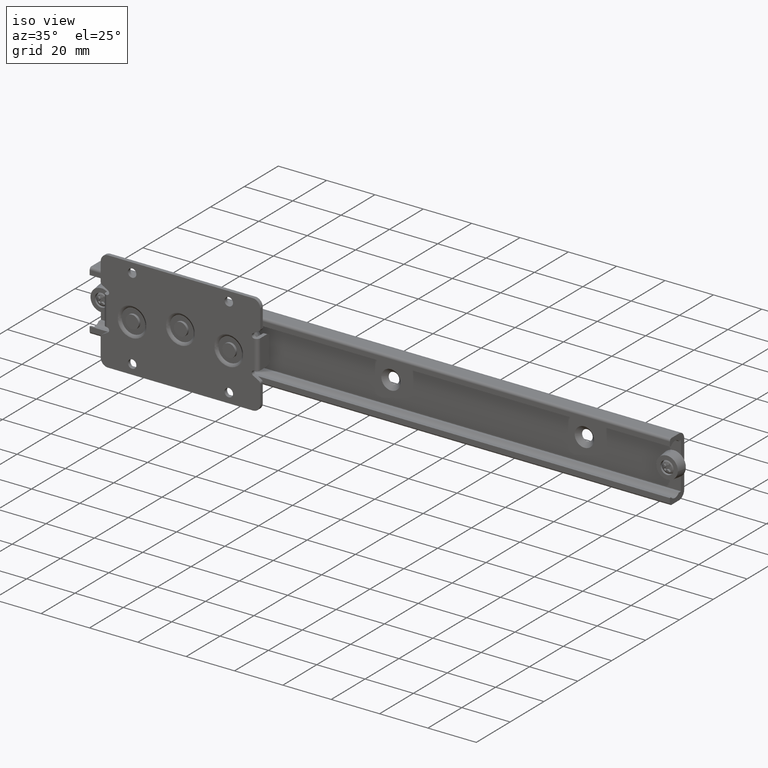
[diagram: clean part render]
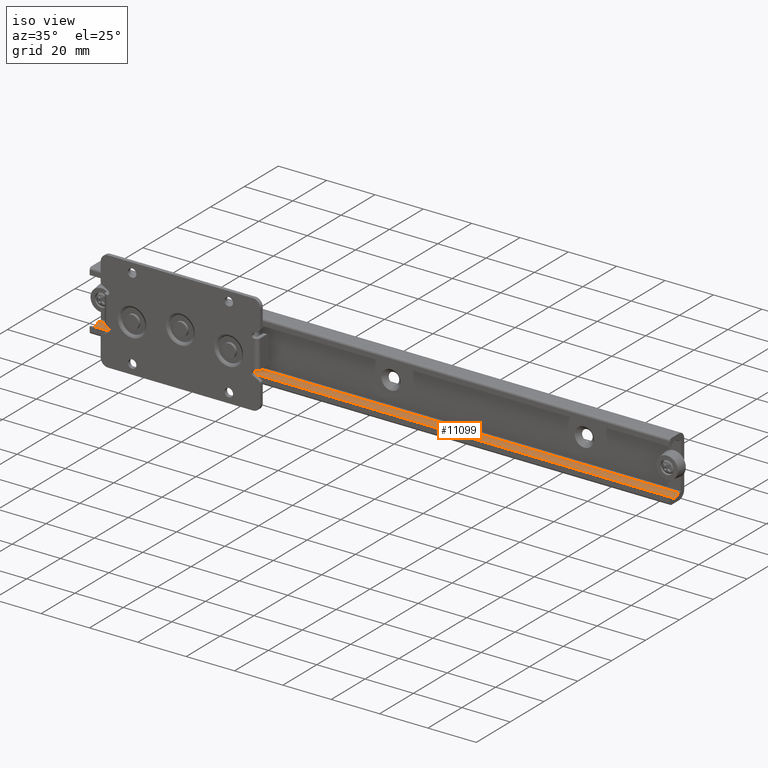
[diagram: same view with one face highlighted and labeled with its STEP entity id]
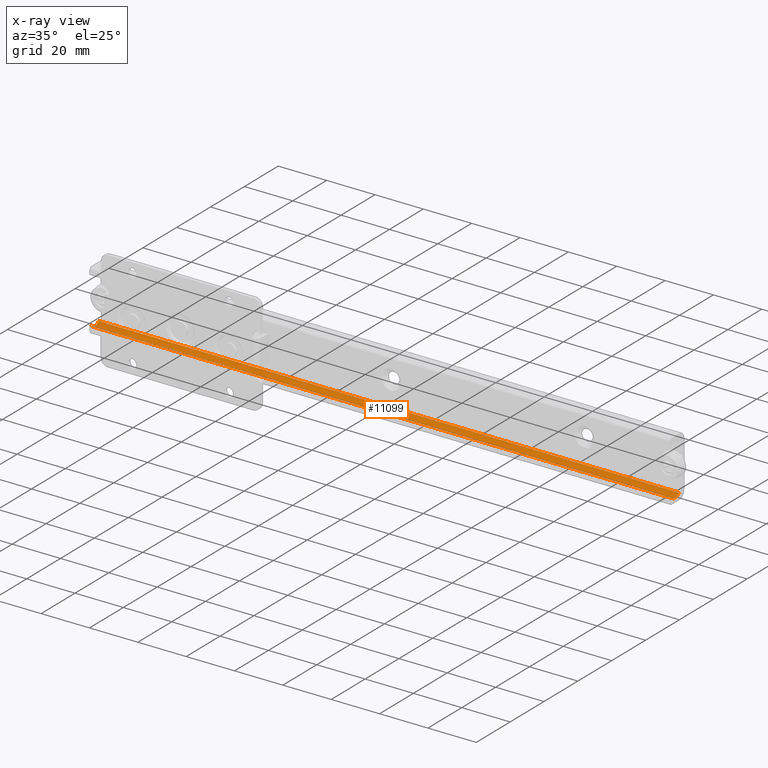
[diagram: x-ray of the same camera — body ghosted, the highlighted face saturated]
A machine part, iso view. The second image highlights one B-rep face of the part: STEP entity #11099.
The next image is the same camera in x-ray: the body ghosted, the highlighted face saturated — about 0% of this face is hidden behind the body in this view.
In plain terms, the highlighted face is a freeform B-spline surface patch.
Its self-contained STEP definition (entity closure, byte-faithful):
#11041=CARTESIAN_POINT('',(246.0,-7.820102745023522,-9.539862998089063));
#11042=CARTESIAN_POINT('',(-6.150000000000006,-7.820102745023522,-9.539862998089063));
#11043=CARTESIAN_POINT('',(246.000000000000030,-5.425386770192872,-12.733210469974980));
#11044=CARTESIAN_POINT('',(-6.150000000000005,-5.425386770192872,-12.733210469974980));
#11045=CARTESIAN_POINT('',(246.0,-3.128340781184956,-9.468901599679164));
#11046=CARTESIAN_POINT('',(-6.150000000000006,-3.128340781184956,-9.468901599679164));
#11054=(BOUNDED_SURFACE()B_SPLINE_SURFACE(1,2,((#11041,#11043,#11045),(#11042,#11044,#11046)),.UNSPECIFIED.,.F.,.F.,.U.)B_SPLINE_SURFACE_WITH_KNOTS((2,2),(3,3),(0.0,252.150000000000090),(0.0,5.910495214135373),.UNSPECIFIED.)GEOMETRIC_REPRESENTATION_ITEM()RATIONAL_B_SPLINE_SURFACE(((1.0,0.587785252292473,1.0),(1.0,0.587785252292473,1.0)))REPRESENTATION_ITEM('')SURFACE());
#11055=CARTESIAN_POINT('',(0.0,-3.226236600008260,-9.600000000119080));
#11056=VERTEX_POINT('',#11055);
#11057=CARTESIAN_POINT('',(0.0,-7.773763399991799,-9.600000000119080));
#11058=VERTEX_POINT('',#11057);
#11059=CARTESIAN_POINT('',(0.0,-3.226236600008260,-9.600000000119080));
#11060=CARTESIAN_POINT('',(0.0,-3.479372751789236,-9.920537880147801));
#11061=CARTESIAN_POINT('',(0.0,-3.995006428752574,-10.345030494102341));
#11062=CARTESIAN_POINT('',(0.0,-4.845196519447583,-10.657136320425289));
#11063=CARTESIAN_POINT('',(0.0,-5.473251587566877,-10.719229976920380));
#11064=CARTESIAN_POINT('',(0.0,-6.097858400887536,-10.657414549019711));
#11065=CARTESIAN_POINT('',(0.0,-6.911903401332884,-10.409877297076610));
#11066=CARTESIAN_POINT('',(0.0,-7.487058085466383,-9.963524177736330));
#11067=CARTESIAN_POINT('',(0.0,-7.773763399991799,-9.600000000119080));
#11068=B_SPLINE_CURVE_WITH_KNOTS('',3,(#11059,#11060,#11061,#11062,#11063,#11064,#11065,#11066,#11067),.UNSPECIFIED.,.F.,.U.,(4,1,1,1,1,1,4),(0.000000692106982,1.225073546871101,1.960145871220180,2.695089828119004,3.103450171097918,3.838561714073843,5.226983784908380),.UNSPECIFIED.);
#11069=EDGE_CURVE('',#11056,#11058,#11068,.T.);
#11070=ORIENTED_EDGE('',*,*,#11069,.T.);
#11071=CARTESIAN_POINT('',(240.0,-7.773763399991799,-9.600000000119080));
#11072=VERTEX_POINT('',#11071);
#11073=CARTESIAN_POINT('',(240.0,-7.773763399991799,-9.600000000119080));
#11074=CARTESIAN_POINT('',(0.0,-7.773763399991799,-9.600000000119080));
#11075=QUASI_UNIFORM_CURVE('',1,(#11073,#11074),.UNSPECIFIED.,.F.,.U.);
#11076=EDGE_CURVE('',#11072,#11058,#11075,.T.);
#11077=ORIENTED_EDGE('',*,*,#11076,.F.);
#11078=CARTESIAN_POINT('',(240.0,-3.226236600008260,-9.600000000119080));
#11079=VERTEX_POINT('',#11078);
#11080=CARTESIAN_POINT('',(240.0,-3.226236600008260,-9.600000000119080));
#11081=CARTESIAN_POINT('',(239.999999999999690,-3.479372751789237,-9.920537880147801));
#11082=CARTESIAN_POINT('',(240.000000000000990,-3.995006428752574,-10.345030494102341));
#11083=CARTESIAN_POINT('',(239.999999999999010,-4.845196519447582,-10.657136320425289));
#11084=CARTESIAN_POINT('',(240.000000000000910,-5.473251587566877,-10.719229976920380));
#11085=CARTESIAN_POINT('',(239.999999999999800,-6.097858400887537,-10.657414549019711));
#11086=CARTESIAN_POINT('',(239.999999999999800,-6.911903401332883,-10.409877297076610));
#11087=CARTESIAN_POINT('',(240.000000000000600,-7.487058085466383,-9.963524177736334));
#11088=CARTESIAN_POINT('',(240.0,-7.773763399991799,-9.600000000119080));
#11089=B_SPLINE_CURVE_WITH_KNOTS('',3,(#11080,#11081,#11082,#11083,#11084,#11085,#11086,#11087,#11088),.UNSPECIFIED.,.F.,.U.,(4,1,1,1,1,1,4),(0.000000692106982,1.225073546871101,1.960145871220180,2.695089828119004,3.103450171097918,3.838561714073843,5.226983784908380),.UNSPECIFIED.);
#11090=EDGE_CURVE('',#11079,#11072,#11089,.T.);
#11091=ORIENTED_EDGE('',*,*,#11090,.F.);
#11092=CARTESIAN_POINT('',(240.0,-3.226236600008260,-9.600000000119080));
#11093=CARTESIAN_POINT('',(0.0,-3.226236600008260,-9.600000000119080));
#11094=QUASI_UNIFORM_CURVE('',1,(#11092,#11093),.UNSPECIFIED.,.F.,.U.);
#11095=EDGE_CURVE('',#11079,#11056,#11094,.T.);
#11096=ORIENTED_EDGE('',*,*,#11095,.T.);
#11097=EDGE_LOOP('',(#11070,#11077,#11091,#11096));
#11098=FACE_OUTER_BOUND('',#11097,.T.);
#11099=ADVANCED_FACE('',(#11098),#11054,.F.);